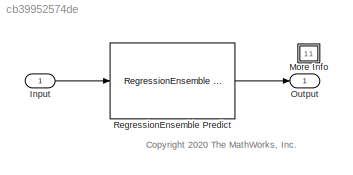
MODEL slx_cb39952574de
KIND model
CONFIG AbsTol = auto
CONFIG EnableMultiTasking = off
CONFIG FixedStep = auto
CONFIG MaxStep = auto
CONFIG MinStep = auto
CONFIG PreLoadFcn = if ~exist("ensMdl","var")\n\nload carbig\nc_Origin = categorical(cellstr(Origin));\nd_Origin = dummyvar(c_Origin);\nX = [Acceleration,Cylinders,Displacement,Horsepower,Model_Year,Weight,d_Origin];\nY = MPG;\n\nrng('default')\nt = templateTree('Reproducible',true,'MinLeafSize',1);\nensMdl = fitrensemble(X,Y,'Learners',t,'Method','Bag','NumLearningCycles',500);\n\nload carsmall\nc_Origin_small = categorical(cell...<+336ch>
CONFIG RelTol = 1e-3
CONFIG SampleTimeConstraint = Unconstrained
CONFIG SolverName = FixedStepDiscrete
CONFIG StartTime = 0.0
CONFIG StopTime = carsmallInput.time(end)
BLOCK [Inport] Input
  PortDimensions = 13
BLOCK [SubSystem] More Info
  OpenFcn = showExample('stats/PredictResponsesUsingRegressionEnsemblePredictBlockExample')
BLOCK [Outport] Output
BLOCK [Reference] RegressionEnsemble Predict  REF=statsLibrary/Regression/RegressionEnsemble Predict
  SourceBlock = statsLibrary/Regression/RegressionEnsemble Predict
  SourceType = RegressionEnsemble Predict
ANNOTATION (root): <copyright redacted>
LINE Input:1 -> RegressionEnsemble Predict:1
LINE RegressionEnsemble Predict:1 -> Output:1
